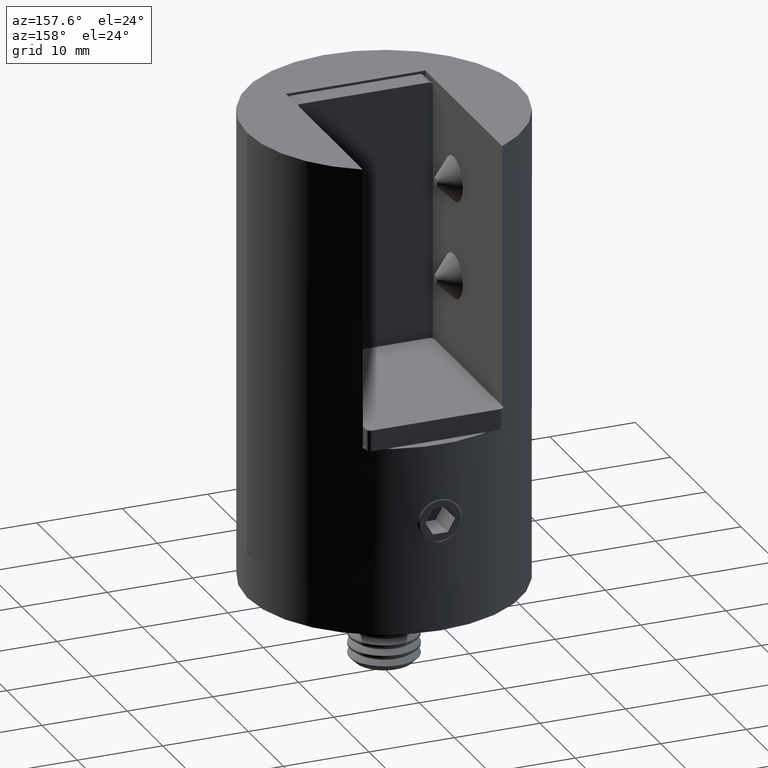
[diagram: clean part render]
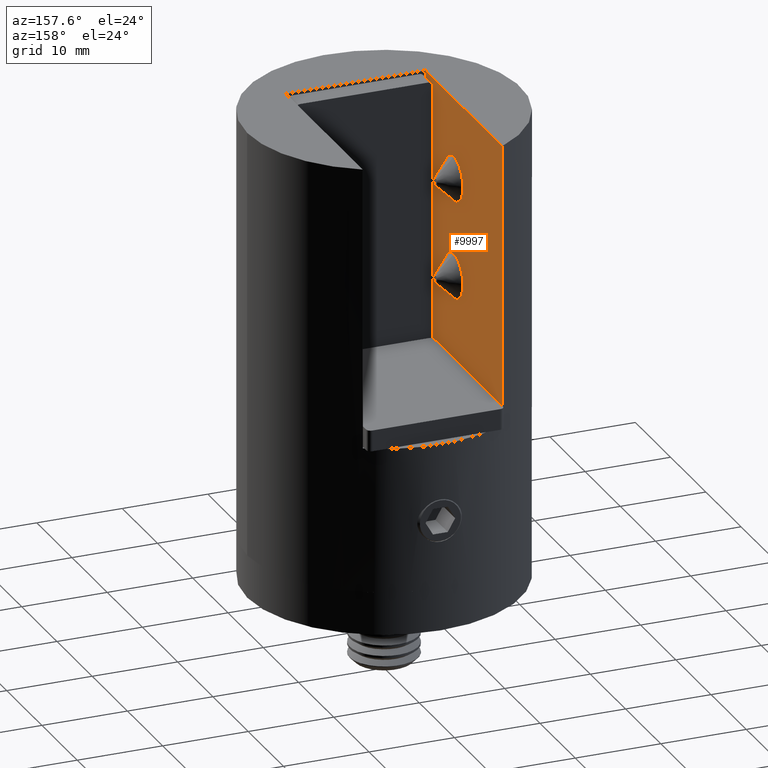
[diagram: same view with one face highlighted and labeled with its STEP entity id]
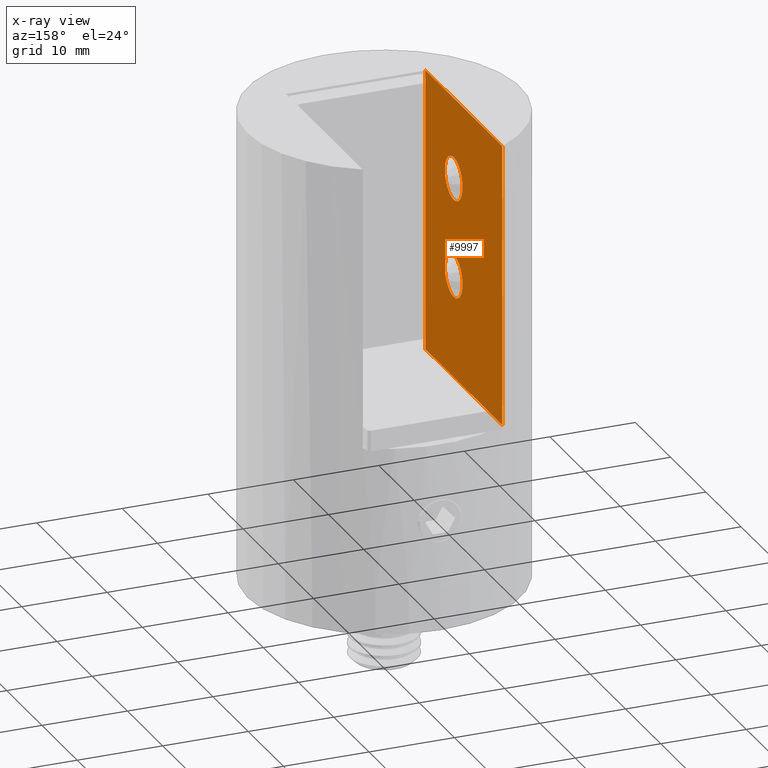
[diagram: x-ray of the same camera — body ghosted, the highlighted face saturated]
A machine part, auxiliary view. The second image highlights one B-rep face of the part: STEP entity #9997.
The next image is the same camera in x-ray: the body ghosted, the highlighted face saturated — about 0% of this face is hidden behind the body in this view.
In plain terms, the highlighted planar face has unit normal (-1, 0, 0).
Its self-contained STEP definition (entity closure, byte-faithful):
#8 = VERTEX_POINT ( 'NONE', #9051 ) ;
#54 = DIRECTION ( 'NONE',  ( 0.000000000000000000, -1.000000000000000000, 0.000000000000000000 ) ) ;
#635 = CARTESIAN_POINT ( 'NONE',  ( -8.150000000000000355, -7.703719777548943412E-31, -21.00000000000001421 ) ) ;
#644 = VECTOR ( 'NONE', #6875, 1000.000000000000000 ) ;
#1110 = EDGE_CURVE ( 'NONE', #8, #8, #15163, .T. ) ;
#1454 = EDGE_LOOP ( 'NONE', ( #19999 ) ) ;
#1973 = CARTESIAN_POINT ( 'NONE',  ( -8.150000000000000355, 13.76871453694933578, -50.00000000000000000 ) ) ;
#2145 = AXIS2_PLACEMENT_3D ( 'NONE', #2717, #20356, #4371 ) ;
#2252 = CARTESIAN_POINT ( 'NONE',  ( -8.150000000000000355, -8.000000000000000000, 0.000000000000000000 ) ) ;
#2669 = FACE_BOUND ( 'NONE', #1454, .T. ) ;
#2717 = CARTESIAN_POINT ( 'NONE',  ( -8.150000000000000355, -8.000000000000000000, 9.000000000000003553 ) ) ;
#3861 = VECTOR ( 'NONE', #54, 1000.000000000000000 ) ;
#4024 = VERTEX_POINT ( 'NONE', #2252 ) ;
#4371 = DIRECTION ( 'NONE',  ( -0.000000000000000000, 0.000000000000000000, 1.000000000000000000 ) ) ;
#4480 = FACE_OUTER_BOUND ( 'NONE', #12901, .T. ) ;
#4739 = LINE ( 'NONE', #1973, #6518 ) ;
#5553 = VERTEX_POINT ( 'NONE', #5870 ) ;
#5734 = ORIENTED_EDGE ( 'NONE', *, *, #15697, .F. ) ;
#5768 = EDGE_LOOP ( 'NONE', ( #20395 ) ) ;
#5870 = CARTESIAN_POINT ( 'NONE',  ( -8.150000000000000355, 13.76871453694933578, 0.000000000000000000 ) ) ;
#6518 = VECTOR ( 'NONE', #8309, 1000.000000000000000 ) ;
#6785 = ORIENTED_EDGE ( 'NONE', *, *, #13934, .T. ) ;
#6801 = ORIENTED_EDGE ( 'NONE', *, *, #10213, .T. ) ;
#6875 = DIRECTION ( 'NONE',  ( -0.000000000000000000, 1.000000000000000000, -0.000000000000000000 ) ) ;
#7213 = LINE ( 'NONE', #13894, #9482 ) ;
#7405 = PLANE ( 'NONE',  #2145 ) ;
#7638 = VERTEX_POINT ( 'NONE', #16365 ) ;
#7863 = VERTEX_POINT ( 'NONE', #10073 ) ;
#8309 = DIRECTION ( 'NONE',  ( 0.000000000000000000, 0.000000000000000000, 1.000000000000000000 ) ) ;
#8735 = EDGE_CURVE ( 'NONE', #17955, #5553, #4739, .T. ) ;
#9051 = CARTESIAN_POINT ( 'NONE',  ( -8.150000000000000355, -7.703719777548943412E-31, -18.50000000000002842 ) ) ;
#9482 = VECTOR ( 'NONE', #10558, 1000.000000000000000 ) ;
#9997 = ADVANCED_FACE ( 'NONE', ( #20975, #2669, #4480 ), #7405, .F. ) ;
#10073 = CARTESIAN_POINT ( 'NONE',  ( -8.150000000000000355, -8.000000000000000000, -33.00000000000000000 ) ) ;
#10213 = EDGE_CURVE ( 'NONE', #7863, #17955, #10544, .T. ) ;
#10363 = DIRECTION ( 'NONE',  ( -1.000000000000000000, -0.000000000000000000, -0.000000000000000000 ) ) ;
#10544 = LINE ( 'NONE', #18191, #644 ) ;
#10558 = DIRECTION ( 'NONE',  ( -0.000000000000000000, -0.000000000000000000, 1.000000000000000000 ) ) ;
#10660 = ORIENTED_EDGE ( 'NONE', *, *, #8735, .T. ) ;
#12901 = EDGE_LOOP ( 'NONE', ( #10660, #6785, #5734, #6801 ) ) ;
#13223 = AXIS2_PLACEMENT_3D ( 'NONE', #18401, #10363, #19887 ) ;
#13504 = CARTESIAN_POINT ( 'NONE',  ( -8.150000000000000355, 13.76871453694933578, -33.00000000000000000 ) ) ;
#13894 = CARTESIAN_POINT ( 'NONE',  ( -8.150000000000000355, -8.000000000000000000, 9.000000000000003553 ) ) ;
#13934 = EDGE_CURVE ( 'NONE', #5553, #4024, #19373, .T. ) ;
#15163 = CIRCLE ( 'NONE', #18692, 2.499999999999988454 ) ;
#15249 = DIRECTION ( 'NONE',  ( -1.000000000000000000, -0.000000000000000000, -0.000000000000000000 ) ) ;
#15697 = EDGE_CURVE ( 'NONE', #7863, #4024, #7213, .T. ) ;
#16365 = CARTESIAN_POINT ( 'NONE',  ( -8.150000000000000355, 0.000000000000000000, -7.000000000000024869 ) ) ;
#16416 = EDGE_CURVE ( 'NONE', #7638, #7638, #19411, .T. ) ;
#16534 = DIRECTION ( 'NONE',  ( 0.000000000000000000, 0.000000000000000000, 1.000000000000000000 ) ) ;
#17955 = VERTEX_POINT ( 'NONE', #13504 ) ;
#18191 = CARTESIAN_POINT ( 'NONE',  ( -8.150000000000000355, -8.000000000000000000, -33.00000000000000000 ) ) ;
#18401 = CARTESIAN_POINT ( 'NONE',  ( -8.150000000000000355, 0.000000000000000000, -9.500000000000014211 ) ) ;
#18692 = AXIS2_PLACEMENT_3D ( 'NONE', #635, #15249, #16534 ) ;
#19373 = LINE ( 'NONE', #20872, #3861 ) ;
#19411 = CIRCLE ( 'NONE', #13223, 2.499999999999988454 ) ;
#19887 = DIRECTION ( 'NONE',  ( 0.000000000000000000, 0.000000000000000000, 1.000000000000000000 ) ) ;
#19999 = ORIENTED_EDGE ( 'NONE', *, *, #16416, .T. ) ;
#20356 = DIRECTION ( 'NONE',  ( -1.000000000000000000, 0.000000000000000000, -0.000000000000000000 ) ) ;
#20395 = ORIENTED_EDGE ( 'NONE', *, *, #1110, .T. ) ;
#20872 = CARTESIAN_POINT ( 'NONE',  ( -8.150000000000000355, 0.000000000000000000, 0.000000000000000000 ) ) ;
#20975 = FACE_BOUND ( 'NONE', #5768, .T. ) ;